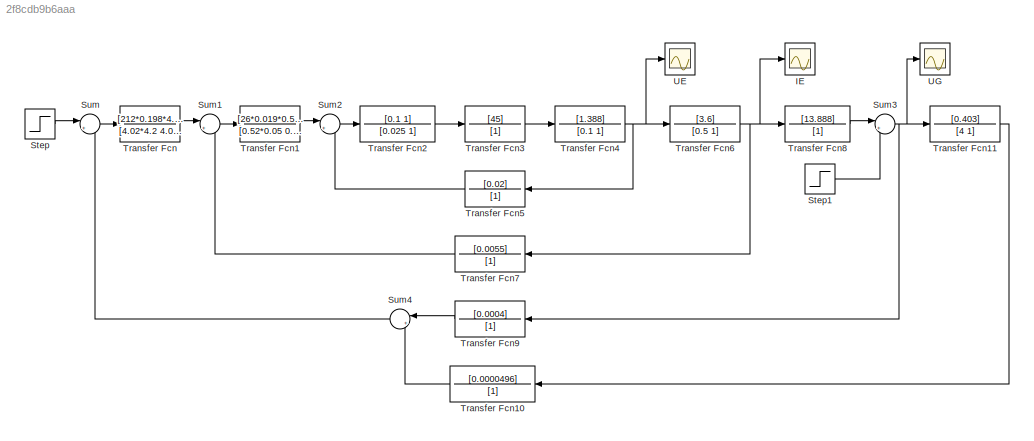
MODEL slx_2f8cdb9b6aaa
KIND model
CONFIG AbsTol = auto
CONFIG EnableMultiTasking = off
CONFIG FixedStep = auto
CONFIG MaxStep = auto
CONFIG MinStep = auto
CONFIG RelTol = 1e-3
CONFIG SampleTimeConstraint = Unconstrained
CONFIG SolverName = VariableStepAuto
CONFIG StartTime = 0.0
CONFIG StopTime = 150.0
BLOCK [Scope] IE
  Floating = off
  NumInputPorts = 1
  ScopeSpecificationString = Simulink.scopes.TimeScopeBlockCfg('CurrentConfiguration', extmgr.ConfigurationSet(extmgr.Configuration('Core','General UI',true),extmgr.Configuration('Core','Source UI',true),extmgr.Configuration('Sources','WiredSimulink',true,'DataLoggingVariableName','ScopeData1'),extmgr.Configuration('Visuals','Time Domain',true,'SerializedDisplays',{struct('MinYLimReal','-315.71776','MaxYLimReal','2841.45983',...<+1390ch>
BLOCK [Step] Step
  After = 10
  SampleTime = 0
  Time = 0
BLOCK [Step] Step1
  After = -1000
  SampleTime = 0
  Time = 80
BLOCK [Sum] Sum
  Inputs = |+-
BLOCK [Sum] Sum1
  Inputs = |+-
BLOCK [Sum] Sum2
  Inputs = |+-
BLOCK [Sum] Sum3
  Inputs = |++
BLOCK [Sum] Sum4
  Inputs = |+-
  NameLocation = top
BLOCK [TransferFcn] Transfer Fcn
  Denominator = [4.02*4.2 4.02 0]
  Numerator = [212*0.198*4.02 212*4.02 212]
BLOCK [TransferFcn] Transfer Fcn1
  Denominator = [0.52*0.05 0.52 0]
  Numerator = [26*0.019*0.52 26*0.52 26]
BLOCK [TransferFcn] Transfer Fcn10
  Denominator = [1]
  NameLocation = top
  Numerator = [0.0000496]
BLOCK [TransferFcn] Transfer Fcn11
  Denominator = [4 1]
  Numerator = [0.403]
BLOCK [TransferFcn] Transfer Fcn2
  Denominator = [0.025 1]
  Numerator = [0.1 1]
BLOCK [TransferFcn] Transfer Fcn3
  Denominator = [1]
  Numerator = [45]
BLOCK [TransferFcn] Transfer Fcn4
  Denominator = [0.1 1]
  Numerator = [1.388]
BLOCK [TransferFcn] Transfer Fcn5
  Denominator = [1]
  NameLocation = top
  Numerator = [0.02]
BLOCK [TransferFcn] Transfer Fcn6
  Denominator = [0.5 1]
  Numerator = [3.6]
BLOCK [TransferFcn] Transfer Fcn7
  Denominator = [1]
  NameLocation = top
  Numerator = [0.0055]
BLOCK [TransferFcn] Transfer Fcn8
  Denominator = [1]
  Numerator = [13.888]
BLOCK [TransferFcn] Transfer Fcn9
  Denominator = [1]
  NameLocation = top
  Numerator = [0.0004]
BLOCK [Scope] UE
  Floating = off
  NumInputPorts = 1
  ScopeSpecificationString = Simulink.scopes.TimeScopeBlockCfg('CurrentConfiguration', extmgr.ConfigurationSet(extmgr.Configuration('Core','General UI',true),extmgr.Configuration('Core','Source UI',true),extmgr.Configuration('Sources','WiredSimulink',true,'DataLoggingVariableName','ScopeData2'),extmgr.Configuration('Visuals','Time Domain',true,'SerializedDisplays',{struct('MinYLimReal','-10681.26362','MaxYLimReal','20754.2282...<+1398ch>
BLOCK [Scope] UG
  Floating = off
  NumInputPorts = 1
  ScopeSpecificationString = Simulink.scopes.TimeScopeBlockCfg('CurrentConfiguration', extmgr.ConfigurationSet(extmgr.Configuration('Core','General UI',true),extmgr.Configuration('Core','Source UI',true),extmgr.Configuration('Sources','WiredSimulink',true),extmgr.Configuration('Visuals','Time Domain',true,'SerializedDisplays',{struct('MinYLimReal','-4384.68824','MaxYLimReal','39462.19413','YLabelReal','','MinYLimMag','  0.000...<+1350ch>
LINE Step1:1 -> Sum3:2
LINE Step:1 -> Sum:1
LINE Sum1:1 -> Transfer Fcn1:1
LINE Sum2:1 -> Transfer Fcn2:1
NET Sum3:1 -> Transfer Fcn11:1, Transfer Fcn9:1, UG:1
LINE Sum4:1 -> Sum:2
LINE Sum:1 -> Transfer Fcn:1
LINE Transfer Fcn10:1 -> Sum4:2
LINE Transfer Fcn11:1 -> Transfer Fcn10:1
LINE Transfer Fcn1:1 -> Sum2:1
LINE Transfer Fcn2:1 -> Transfer Fcn3:1
LINE Transfer Fcn3:1 -> Transfer Fcn4:1
NET Transfer Fcn4:1 -> Transfer Fcn5:1, Transfer Fcn6:1, UE:1
LINE Transfer Fcn5:1 -> Sum2:2
NET Transfer Fcn6:1 -> IE:1, Transfer Fcn7:1, Transfer Fcn8:1
LINE Transfer Fcn7:1 -> Sum1:2
LINE Transfer Fcn8:1 -> Sum3:1
LINE Transfer Fcn9:1 -> Sum4:1
LINE Transfer Fcn:1 -> Sum1:1
note: NET lines group one-source signal fan-out (src -> all destinations, sorted); 1:1 wires keep LINE
